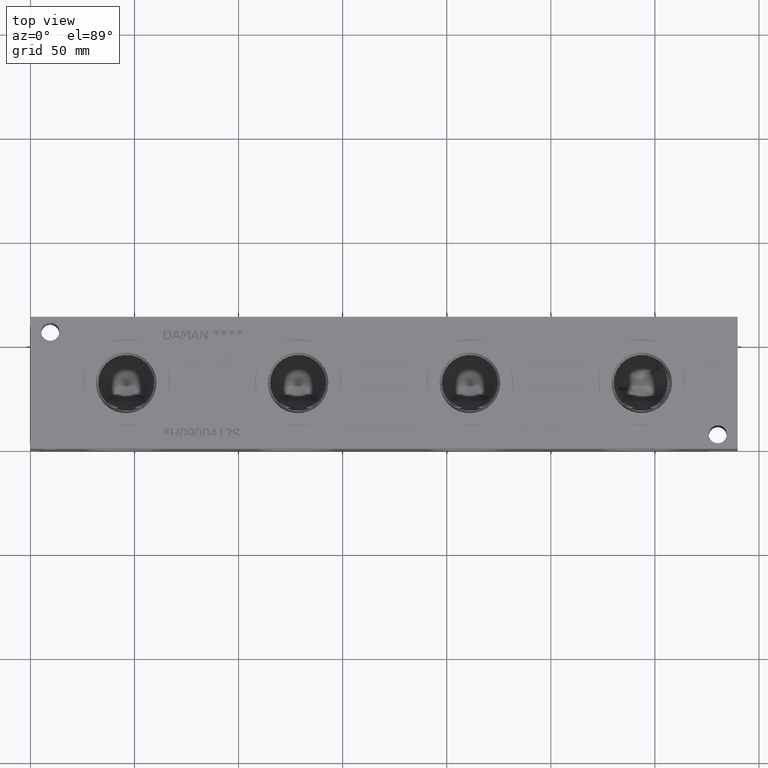
[diagram: clean part render]
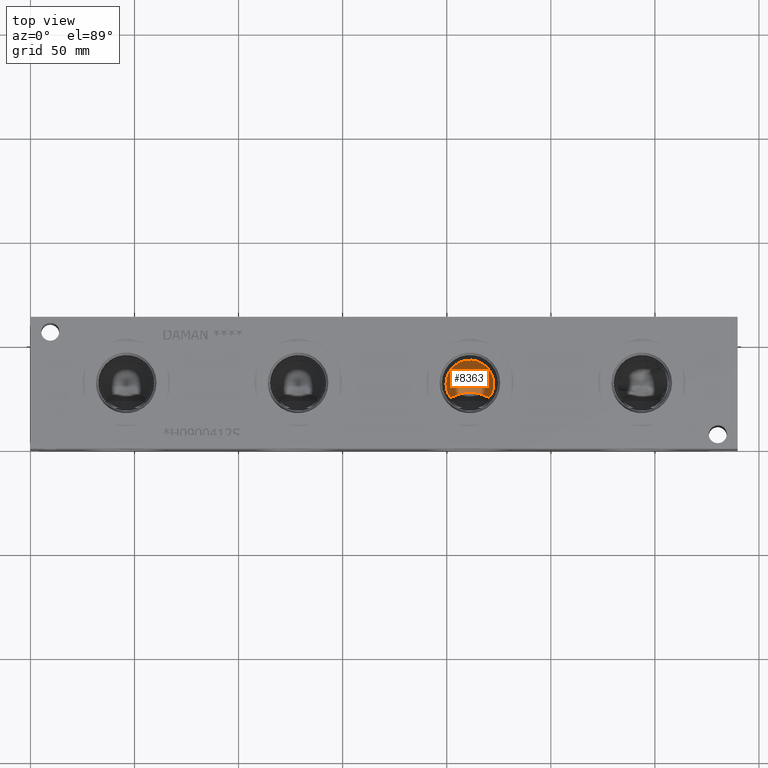
[diagram: same view with one face highlighted and labeled with its STEP entity id]
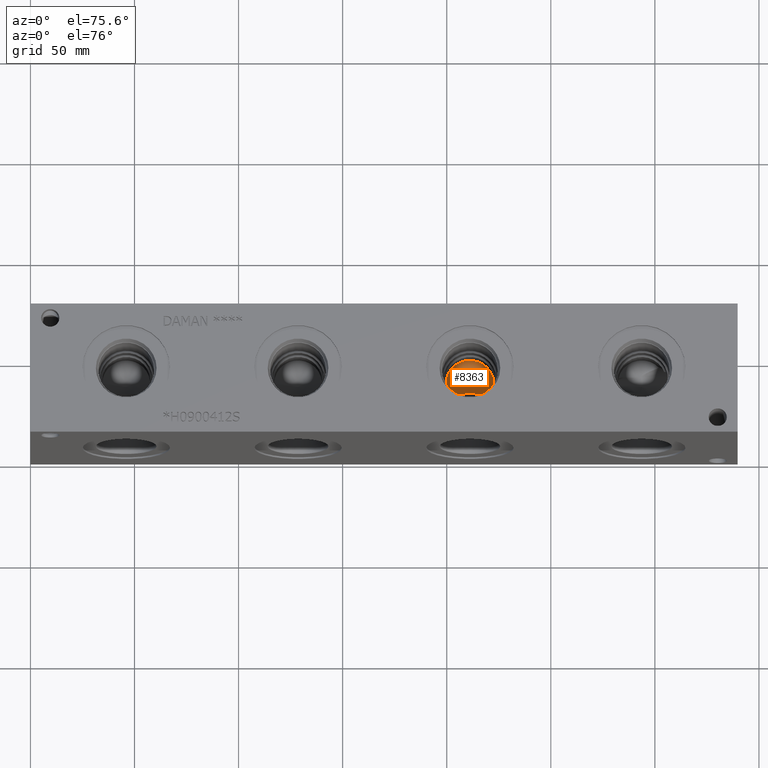
[diagram: same view with one face highlighted and labeled with its STEP entity id]
A machine part, top view. The second image highlights one B-rep face of the part: STEP entity #8363.
A second angle (auxiliary view) of the same face is appended — the face is thin or edge-on in the first view.
In plain terms, the highlighted conical surface has half-angle 60 deg.
Its self-contained STEP definition (entity closure, byte-faithful):
#113=CONICAL_SURFACE('',#8850,5.7531,1.0471975511966);
#245=CIRCLE('',#8851,11.5062);
#246=CIRCLE('',#8852,11.5062);
#582=B_SPLINE_CURVE_WITH_KNOTS('',3,(#14251,#14252,#14253,#14254,#14255,
#14256,#14257,#14258,#14259,#14260,#14261,#14262,#14263,#14264,#14265,#14266,
#14267,#14268),.UNSPECIFIED.,.F.,.F.,(4,2,2,2,2,2,2,2,4),(2.68178318485834,
2.93531449258291,3.35464513438047,3.54531862898979,3.73599212359912,3.92666561820844,
4.11733911281776,4.53666975461532,4.7902010623399),.UNSPECIFIED.);
#1062=FACE_OUTER_BOUND('',#1534,.T.);
#1534=EDGE_LOOP('',(#7140,#7141,#7142,#7143,#7144));
#2324=LINE('',#14462,#3078);
#3078=VECTOR('',#10535,5.7531);
#3804=VERTEX_POINT('',#14243);
#3805=VERTEX_POINT('',#14250);
#3841=VERTEX_POINT('',#14459);
#3842=VERTEX_POINT('',#14461);
#4921=EDGE_CURVE('',#3805,#3804,#582,.T.);
#4973=EDGE_CURVE('',#3804,#3841,#245,.T.);
#4974=EDGE_CURVE('',#3841,#3842,#2324,.T.);
#4975=EDGE_CURVE('',#3841,#3805,#246,.T.);
#7140=ORIENTED_EDGE('',*,*,#4921,.T.);
#7141=ORIENTED_EDGE('',*,*,#4973,.T.);
#7142=ORIENTED_EDGE('',*,*,#4974,.T.);
#7143=ORIENTED_EDGE('',*,*,#4974,.F.);
#7144=ORIENTED_EDGE('',*,*,#4975,.T.);
#8363=ADVANCED_FACE('',(#1062),#113,.F.);
#8850=AXIS2_PLACEMENT_3D('',#14458,#10531,#10532);
#8851=AXIS2_PLACEMENT_3D('',#14460,#10533,#10534);
#8852=AXIS2_PLACEMENT_3D('',#14463,#10536,#10537);
#10531=DIRECTION('center_axis',(0.,0.,1.));
#10532=DIRECTION('ref_axis',(1.,0.,0.));
#10533=DIRECTION('center_axis',(0.,0.,1.));
#10534=DIRECTION('ref_axis',(1.,0.,0.));
#10535=DIRECTION('',(0.866025403784439,1.06057523872491E-16,-0.5));
#10536=DIRECTION('center_axis',(0.,0.,1.));
#10537=DIRECTION('ref_axis',(1.,0.,0.));
#14243=CARTESIAN_POINT('',(220.534856677133,25.1285596904347,32.64278));
#14250=CARTESIAN_POINT('',(201.714743322867,25.1285596904347,32.64278));
#14251=CARTESIAN_POINT('Ctrl Pts',(201.714743322867,25.1285596904347,32.64278));
#14252=CARTESIAN_POINT('Ctrl Pts',(202.411290255603,25.455697189526,32.2052002820293));
#14253=CARTESIAN_POINT('Ctrl Pts',(203.105823463469,25.7726108660077,31.7730883566958));
#14254=CARTESIAN_POINT('Ctrl Pts',(204.953724049044,26.5667917944912,30.6490046683083));
#14255=CARTESIAN_POINT('Ctrl Pts',(206.101295262191,27.0195595500046,29.961904191618));
#14256=CARTESIAN_POINT('Ctrl Pts',(207.878501020663,27.4830024794775,29.0894015503021));
#14257=CARTESIAN_POINT('Ctrl Pts',(208.506670410039,27.6091374461226,28.8100755397747));
#14258=CARTESIAN_POINT('Ctrl Pts',(209.810637870512,27.7630176929246,28.4022267073779));
#14259=CARTESIAN_POINT('Ctrl Pts',(210.489221684636,27.7937542440926,28.2838118848038));
#14260=CARTESIAN_POINT('Ctrl Pts',(211.760378315364,27.7937542440926,28.2838118848038));
#14261=CARTESIAN_POINT('Ctrl Pts',(212.438962129488,27.7630176929246,28.4022267073779));
#14262=CARTESIAN_POINT('Ctrl Pts',(213.742929589961,27.6091374461226,28.8100755397747));
#14263=CARTESIAN_POINT('Ctrl Pts',(214.371098979337,27.4830024794776,29.0894015503021));
#14264=CARTESIAN_POINT('Ctrl Pts',(216.148304737809,27.0195595500046,29.961904191618));
#14265=CARTESIAN_POINT('Ctrl Pts',(217.295875950956,26.5667917944912,30.6490046683083));
#14266=CARTESIAN_POINT('Ctrl Pts',(219.143776536531,25.7726108660077,31.7730883566958));
#14267=CARTESIAN_POINT('Ctrl Pts',(219.838309744397,25.455697189526,32.2052002820293));
#14268=CARTESIAN_POINT('Ctrl Pts',(220.534856677133,25.1285596904347,32.64278));
#14458=CARTESIAN_POINT('Origin',(211.1248,31.75,29.3212261663252));
#14459=CARTESIAN_POINT('',(199.6186,31.75,32.64278));
#14460=CARTESIAN_POINT('Origin',(211.1248,31.75,32.64278));
#14461=CARTESIAN_POINT('',(211.1248,31.75,25.9996723326503));
#14462=CARTESIAN_POINT('',(205.3717,31.75,29.3212261663252));
#14463=CARTESIAN_POINT('Origin',(211.1248,31.75,32.64278));